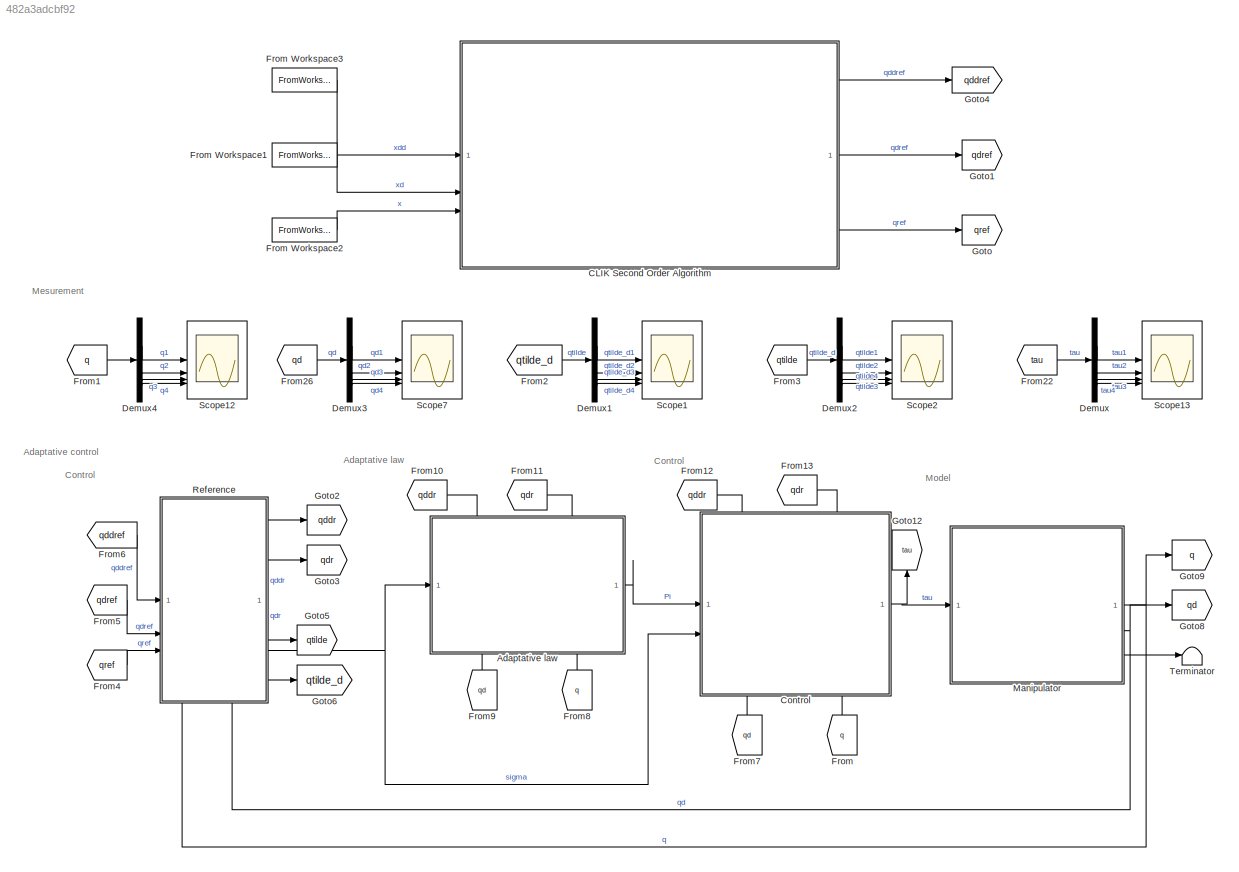
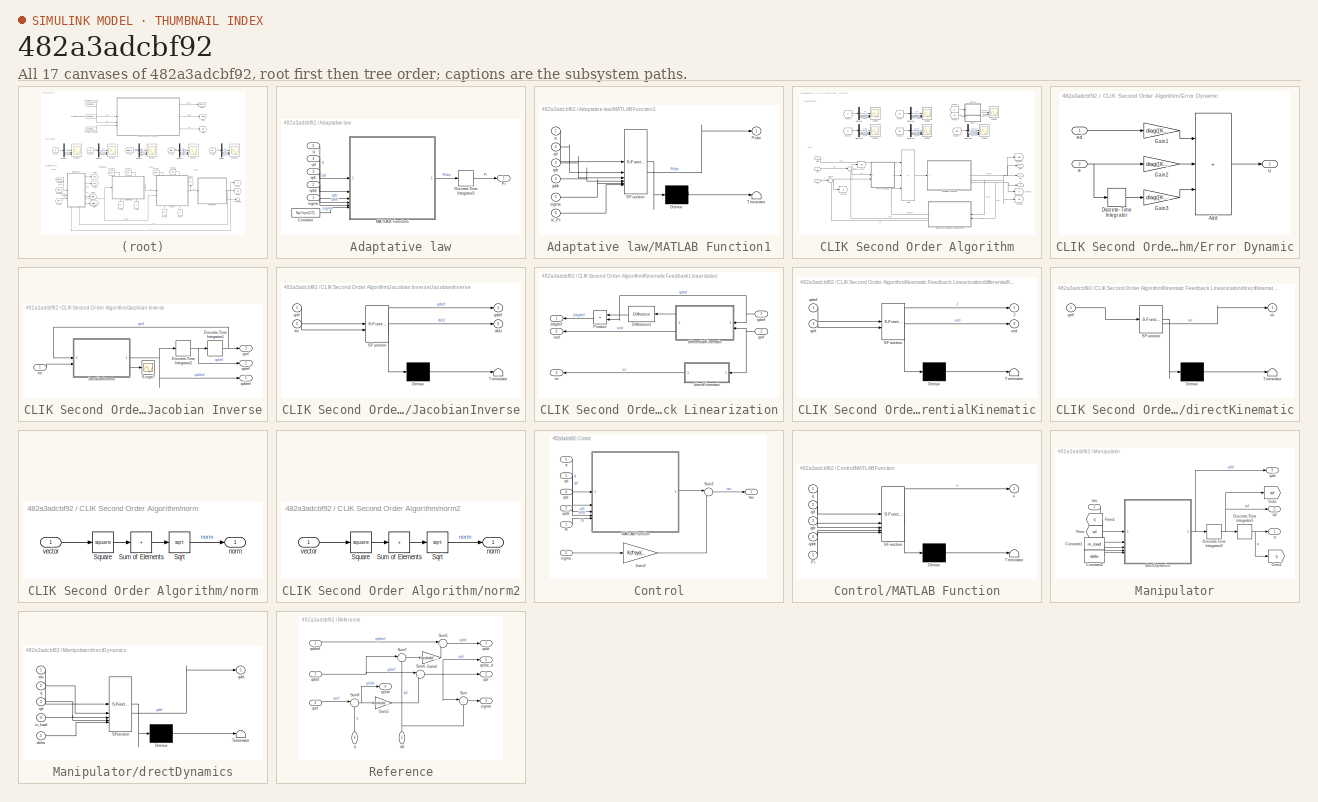
[diagram: thumbnail index - all 17 canvases of the model, root first then tree order]
MODEL slx_482a3adcbf92
KIND model
CONFIG AbsTol = auto
CONFIG EnableMultiTasking = off
CONFIG FixedStep = 10e-17
CONFIG MaxStep = auto
CONFIG MinStep = auto
CONFIG RelTol = 1e-3
CONFIG SampleTimeConstraint = Unconstrained
CONFIG SolverName = VariableStepAuto
CONFIG StartTime = 0.0
CONFIG StopTime = time(end)
BLOCK [SubSystem] Adaptative law
  PortSchema = {"entries":[{"content":{"sides":[{"content":{"connectorIds":["In1"]},"type":"ConnectorPlacement.EquallySpacedRectSide","uuid":"db15ee83-1f1b-455d-afda-e94c97dcc1f2"},{"content":{"connectorIds":["Out1"],"side":"RIGHT"},"type":"ConnectorPlacement.EquallySpacedRectSide","uuid":"41c3f407-56b1-4c5a-b932-c27e17c703ed"},{"content":{"connectorIds":["In2","In3"],"side":"TOP"},"type":"ConnectorPlacement.Equ...<+406ch>
BLOCK [Constant] Adaptative law/Constant
  Value = Kpi*eye(17);
BLOCK [DiscreteIntegrator] Adaptative law/Discrete-Time Integrator3
  ICPrevOutput = DiscIntNeverNeededParam
  ICPrevScaledInput = DiscIntNeverNeededParam
  InitialCondition = [1.2500, 20.0000, 5.0000, 1.2500, 10.0000, 4, 4.000, 4.0000, 1.0000, 0.0100, 0.0100, 0.0050, 0.0010, 0.0001, 0.0001, 0.0100, 0.0050]'
  InitialConditionSetting = Auto
  SampleTime = 0.001
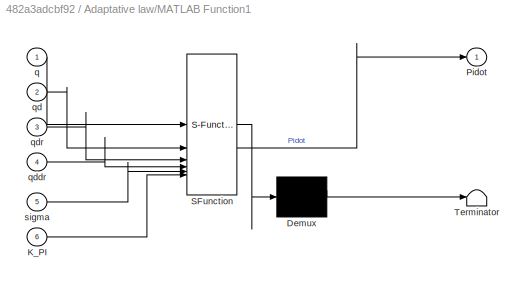
BLOCK [SubSystem] Adaptative law/MATLAB Function1
  ErrorFcn = Stateflow.Translate.translate
  PermitHierarchicalResolution = ExplicitOnly
  SFBlockType = MATLAB Function
  TreatAsAtomicUnit = on
BLOCK [Demux] Adaptative law/MATLAB Function1/ Demux 
  Outputs = 1
BLOCK [S-Function] Adaptative law/MATLAB Function1/ SFunction 
  EnableBusSupport = on
  FunctionName = sf_sfun
  PortCounts = [6 2]
  SFcnIsStateOwnerBlock = off
  SFunctionDeploymentMode = off
  Tag = Stateflow S-Function 3
BLOCK [Terminator] Adaptative law/MATLAB Function1/ Terminator 
BLOCK [Inport] Adaptative law/MATLAB Function1/K_PI
  Port = 6
BLOCK [Outport] Adaptative law/MATLAB Function1/Pidot
BLOCK [Inport] Adaptative law/MATLAB Function1/q
BLOCK [Inport] Adaptative law/MATLAB Function1/qd
  Port = 2
BLOCK [Inport] Adaptative law/MATLAB Function1/qddr
  Port = 4
BLOCK [Inport] Adaptative law/MATLAB Function1/qdr
  Port = 3
BLOCK [Inport] Adaptative law/MATLAB Function1/sigma
  Port = 5
BLOCK [Outport] Adaptative law/Pi
BLOCK [Inport] Adaptative law/q
  Port = 5
BLOCK [Inport] Adaptative law/qd
  Port = 4
BLOCK [Inport] Adaptative law/qddr
  Port = 2
BLOCK [Inport] Adaptative law/qdr
  Port = 3
BLOCK [Inport] Adaptative law/sigma
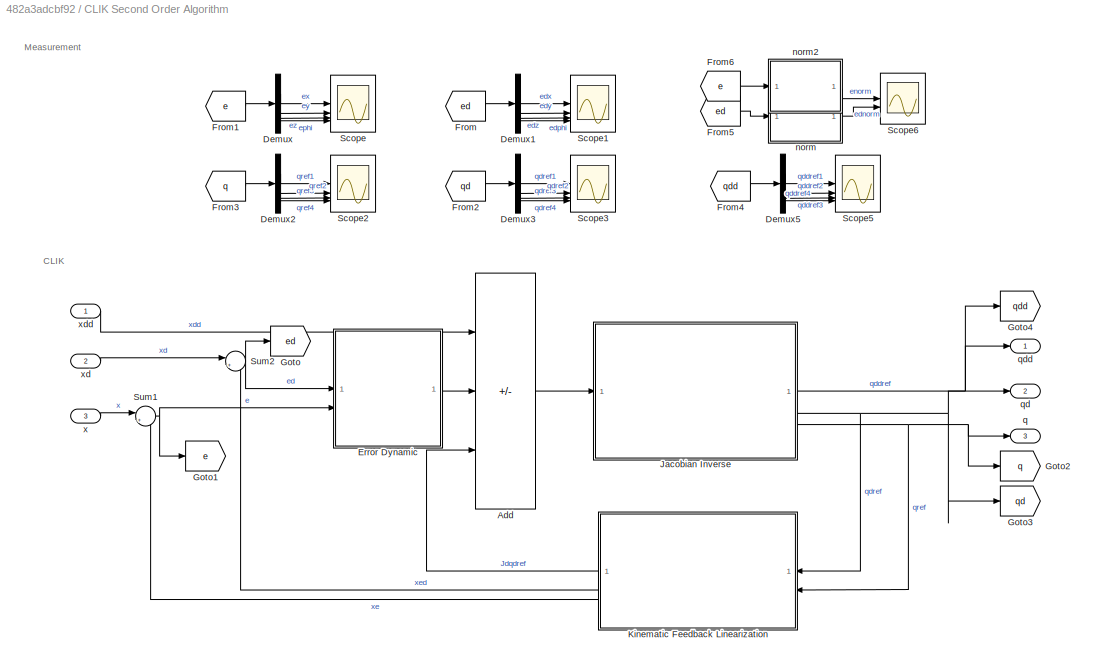
BLOCK [SubSystem] CLIK Second Order Algorithm
BLOCK [Sum] CLIK Second Order Algorithm/Add
  IconShape = rectangular
  Inputs = ++-
BLOCK [Demux] CLIK Second Order Algorithm/Demux
BLOCK [Demux] CLIK Second Order Algorithm/Demux1
BLOCK [Demux] CLIK Second Order Algorithm/Demux2
BLOCK [Demux] CLIK Second Order Algorithm/Demux3
BLOCK [Demux] CLIK Second Order Algorithm/Demux5
BLOCK [SubSystem] CLIK Second Order Algorithm/Error Dynamic
BLOCK [Sum] CLIK Second Order Algorithm/Error Dynamic/Add
  IconShape = rectangular
  Inputs = +++
BLOCK [DiscreteIntegrator] CLIK Second Order Algorithm/Error Dynamic/Discrete-Time Integrator
  ICPrevOutput = DiscIntNeverNeededParam
  ICPrevScaledInput = DiscIntNeverNeededParam
  InitialConditionSetting = Auto
  SampleTime = 0.001
BLOCK [Gain] CLIK Second Order Algorithm/Error Dynamic/Gain1
  Gain = diag([Kd1, Kd2, Kd3, Kd4])
  Multiplication = Matrix(K*u)
BLOCK [Gain] CLIK Second Order Algorithm/Error Dynamic/Gain2
  Gain = diag([Kp1, Kp2, Kp3, Kp4])
  Multiplication = Matrix(K*u)
BLOCK [Gain] CLIK Second Order Algorithm/Error Dynamic/Gain3
  Gain = diag([Ki, Ki, Ki, Ki])
  Multiplication = Matrix(K*u)
BLOCK [Inport] CLIK Second Order Algorithm/Error Dynamic/e
  Port = 2
BLOCK [Inport] CLIK Second Order Algorithm/Error Dynamic/ed
BLOCK [Outport] CLIK Second Order Algorithm/Error Dynamic/u
BLOCK [From] CLIK Second Order Algorithm/From
  GotoTag = ed
BLOCK [From] CLIK Second Order Algorithm/From1
  GotoTag = e
BLOCK [From] CLIK Second Order Algorithm/From2
  GotoTag = qd
BLOCK [From] CLIK Second Order Algorithm/From3
  GotoTag = q
BLOCK [From] CLIK Second Order Algorithm/From4
  GotoTag = qdd
BLOCK [From] CLIK Second Order Algorithm/From5
  GotoTag = ed
BLOCK [From] CLIK Second Order Algorithm/From6
  GotoTag = e
BLOCK [Goto] CLIK Second Order Algorithm/Goto
  GotoTag = ed
BLOCK [Goto] CLIK Second Order Algorithm/Goto1
  GotoTag = e
BLOCK [Goto] CLIK Second Order Algorithm/Goto2
  GotoTag = q
BLOCK [Goto] CLIK Second Order Algorithm/Goto3
  GotoTag = qd
BLOCK [Goto] CLIK Second Order Algorithm/Goto4
  GotoTag = qdd
BLOCK [SubSystem] CLIK Second Order Algorithm/Jacobian Inverse
BLOCK [DiscreteIntegrator] CLIK Second Order Algorithm/Jacobian Inverse/Discrete-Time Integrator1
  ICPrevOutput = DiscIntNeverNeededParam
  ICPrevScaledInput = DiscIntNeverNeededParam
  InitialCondition = [-1.5706; 0.7851; 0.5000; -0.7855]
  InitialConditionSetting = Auto
  SampleTime = 0.001
BLOCK [DiscreteIntegrator] CLIK Second Order Algorithm/Jacobian Inverse/Discrete-Time Integrator2
  ICPrevOutput = DiscIntNeverNeededParam
  ICPrevScaledInput = DiscIntNeverNeededParam
  InitialCondition = [0; 0; 0; 0] %[2.4152; -4.8305; -0.5000; -2.4153]
  InitialConditionSetting = Auto
  SampleTime = 0.001
BLOCK [SubSystem] CLIK Second Order Algorithm/Jacobian Inverse/JacobianInverse
  ErrorFcn = Stateflow.Translate.translate
  PermitHierarchicalResolution = ExplicitOnly
  SFBlockType = MATLAB Function
  TreatAsAtomicUnit = on
BLOCK [Demux] CLIK Second Order Algorithm/Jacobian Inverse/JacobianInverse/ Demux 
  Outputs = 1
BLOCK [S-Function] CLIK Second Order Algorithm/Jacobian Inverse/JacobianInverse/ SFunction 
  EnableBusSupport = on
  FunctionName = sf_sfun
  PortCounts = [2 3]
  SFcnIsStateOwnerBlock = off
  SFunctionDeploymentMode = off
  Tag = Stateflow S-Function 5
BLOCK [Terminator] CLIK Second Order Algorithm/Jacobian Inverse/JacobianInverse/ Terminator 
BLOCK [Outport] CLIK Second Order Algorithm/Jacobian Inverse/JacobianInverse/detJ
  Port = 2
BLOCK [Inport] CLIK Second Order Algorithm/Jacobian Inverse/JacobianInverse/ke
  Port = 2
BLOCK [Outport] CLIK Second Order Algorithm/Jacobian Inverse/JacobianInverse/qdref
BLOCK [Inport] CLIK Second Order Algorithm/Jacobian Inverse/JacobianInverse/qref
BLOCK [Scope] CLIK Second Order Algorithm/Jacobian Inverse/Scope7
  Floating = off
  NumInputPorts = 1
  ScopeSpecificationString = Simulink.scopes.TimeScopeBlockCfg('CurrentConfiguration', extmgr.ConfigurationSet(extmgr.Configuration('Core','General UI',true),extmgr.Configuration('Core','Source UI',true),extmgr.Configuration('Sources','WiredSimulink',true,'DataLoggingVariableName','ScopeData1'),extmgr.Configuration('Visuals','Time Domain',true,'SerializedDisplays',{struct('MinYLimReal','0.10918','MaxYLimReal','0.26565','YLabe...<+1412ch>
BLOCK [Inport] CLIK Second Order Algorithm/Jacobian Inverse/ke
BLOCK [Outport] CLIK Second Order Algorithm/Jacobian Inverse/qddref
BLOCK [Outport] CLIK Second Order Algorithm/Jacobian Inverse/qdref
  Port = 2
BLOCK [Outport] CLIK Second Order Algorithm/Jacobian Inverse/qref
  Port = 3
BLOCK [SubSystem] CLIK Second Order Algorithm/Kinematic Feedback Linearization
BLOCK [Reference] CLIK Second Order Algorithm/Kinematic Feedback Linearization/Difference1  REF=simulink/Discrete/Difference
  NameLocation = top
  SourceBlock = simulink/Discrete/Difference
  SourceType = Difference
BLOCK [Outport] CLIK Second Order Algorithm/Kinematic Feedback Linearization/Jdqdref
  NameLocation = top
BLOCK [Product] CLIK Second Order Algorithm/Kinematic Feedback Linearization/Product
  Multiplication = Matrix(*)
  NameLocation = top
BLOCK [SubSystem] CLIK Second Order Algorithm/Kinematic Feedback Linearization/differentialKinematic
  ErrorFcn = Stateflow.Translate.translate
  PermitHierarchicalResolution = ExplicitOnly
  SFBlockType = MATLAB Function
  TreatAsAtomicUnit = on
BLOCK [Demux] CLIK Second Order Algorithm/Kinematic Feedback Linearization/differentialKinematic/ Demux 
  Outputs = 1
BLOCK [S-Function] CLIK Second Order Algorithm/Kinematic Feedback Linearization/differentialKinematic/ SFunction 
  EnableBusSupport = on
  FunctionName = sf_sfun
  PortCounts = [2 3]
  SFcnIsStateOwnerBlock = off
  SFunctionDeploymentMode = off
  Tag = Stateflow S-Function 1
BLOCK [Terminator] CLIK Second Order Algorithm/Kinematic Feedback Linearization/differentialKinematic/ Terminator 
BLOCK [Outport] CLIK Second Order Algorithm/Kinematic Feedback Linearization/differentialKinematic/J
BLOCK [Inport] CLIK Second Order Algorithm/Kinematic Feedback Linearization/differentialKinematic/qdref
BLOCK [Inport] CLIK Second Order Algorithm/Kinematic Feedback Linearization/differentialKinematic/qref
  Port = 2
BLOCK [Outport] CLIK Second Order Algorithm/Kinematic Feedback Linearization/differentialKinematic/xed
  Port = 2
BLOCK [SubSystem] CLIK Second Order Algorithm/Kinematic Feedback Linearization/directKinematic
  ErrorFcn = Stateflow.Translate.translate
  NameLocation = top
  PermitHierarchicalResolution = ExplicitOnly
  SFBlockType = MATLAB Function
  TreatAsAtomicUnit = on
BLOCK [Demux] CLIK Second Order Algorithm/Kinematic Feedback Linearization/directKinematic/ Demux 
  Outputs = 1
BLOCK [S-Function] CLIK Second Order Algorithm/Kinematic Feedback Linearization/directKinematic/ SFunction 
  EnableBusSupport = on
  FunctionName = sf_sfun
  PortCounts = [1 2]
  SFcnIsStateOwnerBlock = off
  SFunctionDeploymentMode = off
  Tag = Stateflow S-Function 2
BLOCK [Terminator] CLIK Second Order Algorithm/Kinematic Feedback Linearization/directKinematic/ Terminator 
BLOCK [Inport] CLIK Second Order Algorithm/Kinematic Feedback Linearization/directKinematic/qref
BLOCK [Outport] CLIK Second Order Algorithm/Kinematic Feedback Linearization/directKinematic/xe
BLOCK [Inport] CLIK Second Order Algorithm/Kinematic Feedback Linearization/qdref
BLOCK [Inport] CLIK Second Order Algorithm/Kinematic Feedback Linearization/qref
  Port = 2
BLOCK [Outport] CLIK Second Order Algorithm/Kinematic Feedback Linearization/xe
  NameLocation = top
  Port = 3
BLOCK [Outport] CLIK Second Order Algorithm/Kinematic Feedback Linearization/xed
  NameLocation = top
  Port = 2
BLOCK [Scope] CLIK Second Order Algorithm/Scope
  Floating = off
  NumInputPorts = 4
  ScopeSpecificationString = Simulink.scopes.TimeScopeBlockCfg('CurrentConfiguration', extmgr.ConfigurationSet(extmgr.Configuration('Core','General UI',true),extmgr.Configuration('Core','Source UI',true),extmgr.Configuration('Sources','WiredSimulink',true,'DataLoggingVariableName','ScopeData2'),extmgr.Configuration('Visuals','Time Domain',true,'SerializedDisplays',{struct('MinYLimReal','-0.0009','MaxYLimReal','0.00038','YLabe...<+3433ch>
BLOCK [Scope] CLIK Second Order Algorithm/Scope1
  Floating = off
  NumInputPorts = 4
  ScopeSpecificationString = Simulink.scopes.TimeScopeBlockCfg('CurrentConfiguration', extmgr.ConfigurationSet(extmgr.Configuration('Core','General UI',true),extmgr.Configuration('Core','Source UI',true),extmgr.Configuration('Sources','WiredSimulink',true,'DataLoggingVariableName','ScopeData3'),extmgr.Configuration('Visuals','Time Domain',true,'SerializedDisplays',{struct('MinYLimReal','-0.52499','MaxYLimReal','2.31101','YLab...<+3408ch>
BLOCK [Scope] CLIK Second Order Algorithm/Scope2
  Floating = off
  NumInputPorts = 4
  ScopeSpecificationString = Simulink.scopes.TimeScopeBlockCfg('CurrentConfiguration', extmgr.ConfigurationSet(extmgr.Configuration('Core','General UI',true),extmgr.Configuration('Core','Source UI',true),extmgr.Configuration('Sources','WiredSimulink',true,'DataLoggingVariableName','ScopeData4'),extmgr.Configuration('Visuals','Time Domain',true,'SerializedDisplays',{struct('MinYLimReal','-2.48577','MaxYLimReal','6.38467','YLab...<+1388ch>
BLOCK [Scope] CLIK Second Order Algorithm/Scope3
  Floating = off
  NumInputPorts = 4
  ScopeSpecificationString = Simulink.scopes.TimeScopeBlockCfg('CurrentConfiguration', extmgr.ConfigurationSet(extmgr.Configuration('Core','General UI',true),extmgr.Configuration('Core','Source UI',true),extmgr.Configuration('Sources','WiredSimulink',true,'DataLoggingVariableName','ScopeData5'),extmgr.Configuration('Visuals','Time Domain',true,'SerializedDisplays',{struct('MinYLimReal','-9.10422','MaxYLimReal','5.32081','YLab...<+1392ch>
BLOCK [Scope] CLIK Second Order Algorithm/Scope5
  Floating = off
  NumInputPorts = 4
  ScopeSpecificationString = Simulink.scopes.TimeScopeBlockCfg('CurrentConfiguration', extmgr.ConfigurationSet(extmgr.Configuration('Core','General UI',true),extmgr.Configuration('Core','Source UI',true),extmgr.Configuration('Sources','WiredSimulink',true,'DataLoggingVariableName','ScopeData7'),extmgr.Configuration('Visuals','Time Domain',true,'SerializedDisplays',{struct('MinYLimReal','-1.93325','MaxYLimReal','2.61464','YLab...<+1431ch>
BLOCK [Scope] CLIK Second Order Algorithm/Scope6
  Floating = off
  NumInputPorts = 2
  ScopeSpecificationString = Simulink.scopes.TimeScopeBlockCfg('CurrentConfiguration', extmgr.ConfigurationSet(extmgr.Configuration('Core','General UI',true),extmgr.Configuration('Core','Source UI',true),extmgr.Configuration('Sources','WiredSimulink',true,'DataLoggingVariableName','ScopeData8'),extmgr.Configuration('Visuals','Time Domain',true,'SerializedDisplays',{struct('MinYLimReal','-0.16468','MaxYLimReal','1.48717','YLab...<+2083ch>
BLOCK [Sum] CLIK Second Order Algorithm/Sum1
  Inputs = |+-
BLOCK [Sum] CLIK Second Order Algorithm/Sum2
  Inputs = |+-
BLOCK [SubSystem] CLIK Second Order Algorithm/norm
BLOCK [Sqrt] CLIK Second Order Algorithm/norm/Sqrt
BLOCK [Math] CLIK Second Order Algorithm/norm/Square
  Operator = square
BLOCK [Sum] CLIK Second Order Algorithm/norm/Sum of Elements
  IconShape = rectangular
  Inputs = +
BLOCK [Outport] CLIK Second Order Algorithm/norm/norm
BLOCK [Inport] CLIK Second Order Algorithm/norm/vector
BLOCK [SubSystem] CLIK Second Order Algorithm/norm2
BLOCK [Sqrt] CLIK Second Order Algorithm/norm2/Sqrt
BLOCK [Math] CLIK Second Order Algorithm/norm2/Square
  Operator = square
BLOCK [Sum] CLIK Second Order Algorithm/norm2/Sum of Elements
  IconShape = rectangular
  Inputs = +
BLOCK [Outport] CLIK Second Order Algorithm/norm2/norm
BLOCK [Inport] CLIK Second Order Algorithm/norm2/vector
BLOCK [Outport] CLIK Second Order Algorithm/q
  Port = 3
BLOCK [Outport] CLIK Second Order Algorithm/qd
  Port = 2
BLOCK [Outport] CLIK Second Order Algorithm/qdd
BLOCK [Inport] CLIK Second Order Algorithm/x
  Port = 3
BLOCK [Inport] CLIK Second Order Algorithm/xd
  Port = 2
BLOCK [Inport] CLIK Second Order Algorithm/xdd
BLOCK [SubSystem] Control
  PortSchema = {"entries":[{"content":{"sides":[{"content":{"connectorIds":["In1","In2"]},"type":"ConnectorPlacement.EquallySpacedRectSide","uuid":"acb7cdf1-642f-4969-8ed4-672da436f71d"},{"content":{"connectorIds":["Out1"],"side":"RIGHT"},"type":"ConnectorPlacement.EquallySpacedRectSide","uuid":"4cc46839-d0fa-4cc4-8f70-8a289b8a20bb"},{"content":{"connectorIds":["In3","In4"],"side":"TOP"},"type":"ConnectorPlaceme...<+412ch>
BLOCK [Gain] Control/Gain3
  Gain = Kd*eye(4)
  Multiplication = Matrix(K*u)
BLOCK [SubSystem] Control/MATLAB Function
  ErrorFcn = Stateflow.Translate.translate
  PermitHierarchicalResolution = ExplicitOnly
  SFBlockType = MATLAB Function
  TreatAsAtomicUnit = on
BLOCK [Demux] Control/MATLAB Function/ Demux 
  Outputs = 1
BLOCK [S-Function] Control/MATLAB Function/ SFunction 
  EnableBusSupport = on
  FunctionName = sf_sfun
  PortCounts = [5 2]
  SFcnIsStateOwnerBlock = off
  SFunctionDeploymentMode = off
  Tag = Stateflow S-Function 7
BLOCK [Terminator] Control/MATLAB Function/ Terminator 
BLOCK [Inport] Control/MATLAB Function/Pi
  Port = 5
BLOCK [Inport] Control/MATLAB Function/q
BLOCK [Inport] Control/MATLAB Function/qd
  Port = 2
BLOCK [Inport] Control/MATLAB Function/qddr
  Port = 4
BLOCK [Inport] Control/MATLAB Function/qdr
  Port = 3
BLOCK [Outport] Control/MATLAB Function/u
BLOCK [Inport] Control/Pi
BLOCK [Sum] Control/Sum3
  Inputs = |++
BLOCK [Inport] Control/q
  Port = 6
BLOCK [Inport] Control/qd
  Port = 5
BLOCK [Inport] Control/qddr
  Port = 3
BLOCK [Inport] Control/qdr
  Port = 4
BLOCK [Inport] Control/sigma
  Port = 2
BLOCK [Outport] Control/tau
BLOCK [Demux] Demux
BLOCK [Demux] Demux1
BLOCK [Demux] Demux2
BLOCK [Demux] Demux3
BLOCK [Demux] Demux4
BLOCK [From] From
  GotoTag = q
  NameLocation = right
BLOCK [FromWorkspace] From Workspace1
  VariableName = timesample_dot
BLOCK [FromWorkspace] From Workspace2
  VariableName = timesample
BLOCK [FromWorkspace] From Workspace3
  VariableName = timesample_ddot
BLOCK [From] From1
  GotoTag = q
BLOCK [From] From10
  GotoTag = qddr
BLOCK [From] From11
  GotoTag = qdr
BLOCK [From] From12
  GotoTag = qddr
BLOCK [From] From13
  GotoTag = qdr
BLOCK [From] From2
  GotoTag = qtilde_d
BLOCK [From] From22
  GotoTag = tau
BLOCK [From] From26
  GotoTag = qd
BLOCK [From] From3
  GotoTag = qtilde
BLOCK [From] From4
  GotoTag = qref
BLOCK [From] From5
  GotoTag = qdref
BLOCK [From] From6
  GotoTag = qddref
BLOCK [From] From7
  GotoTag = qd
  NameLocation = right
BLOCK [From] From8
  GotoTag = q
  NameLocation = right
BLOCK [From] From9
  GotoTag = qd
  NameLocation = right
BLOCK [Goto] Goto
  GotoTag = qref
BLOCK [Goto] Goto1
  GotoTag = qdref
BLOCK [Goto] Goto12
  GotoTag = tau
  NameLocation = right
BLOCK [Goto] Goto2
  GotoTag = qddr
BLOCK [Goto] Goto3
  GotoTag = qdr
BLOCK [Goto] Goto4
  GotoTag = qddref
BLOCK [Goto] Goto5
  GotoTag = qtilde
BLOCK [Goto] Goto6
  GotoTag = qtilde_d
BLOCK [Goto] Goto8
  GotoTag = qd
BLOCK [Goto] Goto9
  GotoTag = q
BLOCK [SubSystem] Manipulator
BLOCK [Constant] Manipulator/Constant1
  Value = m_load
BLOCK [Constant] Manipulator/Constant2
  Value = delta
BLOCK [DiscreteIntegrator] Manipulator/Discrete-Time Integrator3
  ICPrevOutput = DiscIntNeverNeededParam
  ICPrevScaledInput = DiscIntNeverNeededParam
  InitialCondition = [0; 0; 0; 0]
  InitialConditionSetting = Auto
  SampleTime = 0.001
BLOCK [DiscreteIntegrator] Manipulator/Discrete-Time Integrator5
  ICPrevOutput = DiscIntNeverNeededParam
  ICPrevScaledInput = DiscIntNeverNeededParam
  InitialCondition = [-1.5706; 0.7851; 0.5000; -0.7855]
  InitialConditionSetting = Auto
  SampleTime = 0.001
BLOCK [From] Manipulator/From
  GotoTag = qd
BLOCK [From] Manipulator/From1
  GotoTag = q
BLOCK [Goto] Manipulator/Goto
  GotoTag = qd
BLOCK [Goto] Manipulator/Goto1
  GotoTag = q
BLOCK [SubSystem] Manipulator/drectDynamics
  ErrorFcn = Stateflow.Translate.translate
  PermitHierarchicalResolution = ExplicitOnly
  SFBlockType = MATLAB Function
  TreatAsAtomicUnit = on
BLOCK [Demux] Manipulator/drectDynamics/ Demux 
  Outputs = 1
BLOCK [S-Function] Manipulator/drectDynamics/ SFunction 
  EnableBusSupport = on
  FunctionName = sf_sfun
  PortCounts = [5 2]
  SFcnIsStateOwnerBlock = off
  SFunctionDeploymentMode = off
  Tag = Stateflow S-Function 9
BLOCK [Terminator] Manipulator/drectDynamics/ Terminator 
BLOCK [Inport] Manipulator/drectDynamics/delta
  Port = 5
BLOCK [Inport] Manipulator/drectDynamics/m_load
  Port = 4
BLOCK [Inport] Manipulator/drectDynamics/q
  Port = 2
BLOCK [Inport] Manipulator/drectDynamics/qd
  Port = 3
BLOCK [Outport] Manipulator/drectDynamics/qdd
BLOCK [Inport] Manipulator/drectDynamics/tau
BLOCK [Outport] Manipulator/q
BLOCK [Outport] Manipulator/qd
  Port = 2
BLOCK [Outport] Manipulator/qdd
  Port = 3
BLOCK [Inport] Manipulator/tau
BLOCK [SubSystem] Reference
  PortSchema = {"entries":[{"content":{"sides":[{"content":{"connectorIds":["In1","In2","In3"]},"type":"ConnectorPlacement.EquallySpacedRectSide","uuid":"cb63d9dc-23a2-4ec7-ac11-e398610ef5c2"},{"content":{"connectorIds":["Out1","Out2","Out3","Out4","Out5"],"side":"RIGHT"},"type":"ConnectorPlacement.EquallySpacedRectSide","uuid":"29d086a8-0031-4faa-9200-b9934d21fc49"},{"content":{"side":"TOP"},"type":"ConnectorPl...<+417ch>
BLOCK [Gain] Reference/Gain4
  Gain = lambda*eye(4)
  Multiplication = Matrix(K*u)
BLOCK [Gain] Reference/Gain5
  Gain = lambda*eye(4)
  Multiplication = Matrix(K*u)
BLOCK [Sum] Reference/Sum
  Inputs = |+-
BLOCK [Sum] Reference/Sum5
  Inputs = |++
BLOCK [Sum] Reference/Sum6
  Inputs = |++
BLOCK [Sum] Reference/Sum7
  Inputs = |+-
BLOCK [Sum] Reference/Sum8
  Inputs = |+-
BLOCK [Inport] Reference/q
  NameLocation = right
  Port = 4
BLOCK [Inport] Reference/qd
  NameLocation = right
  Port = 5
BLOCK [Outport] Reference/qddr
BLOCK [Inport] Reference/qddref
BLOCK [Outport] Reference/qdr
  Port = 2
BLOCK [Inport] Reference/qdref
  Port = 2
BLOCK [Inport] Reference/qref
  Port = 3
BLOCK [Outport] Reference/qtilde
  Port = 4
BLOCK [Outport] Reference/qtilde_d
  Port = 5
BLOCK [Outport] Reference/sigma
  Port = 3
BLOCK [Scope] Scope1
  Floating = off
  NumInputPorts = 4
  ScopeSpecificationString = Simulink.scopes.TimeScopeBlockCfg('CurrentConfiguration', extmgr.ConfigurationSet(extmgr.Configuration('Core','General UI',true),extmgr.Configuration('Core','Source UI',true),extmgr.Configuration('Sources','WiredSimulink',true,'DataLoggingVariableName','ScopeData1'),extmgr.Configuration('Visuals','Time Domain',true,'SerializedDisplays',{struct('MinYLimReal','-3.24806','MaxYLimReal','1.35421','YLab...<+3428ch>
BLOCK [Scope] Scope12
  Floating = off
  NumInputPorts = 4
  ScopeSpecificationString = Simulink.scopes.TimeScopeBlockCfg('CurrentConfiguration', extmgr.ConfigurationSet(extmgr.Configuration('Core','General UI',true),extmgr.Configuration('Core','Source UI',true),extmgr.Configuration('Sources','WiredSimulink',true,'DataLoggingVariableName','ScopeData4'),extmgr.Configuration('Visuals','Time Domain',true,'SerializedDisplays',{struct('MinYLimReal','-2.35686','MaxYLimReal','5.49821','YLab...<+3398ch>
BLOCK [Scope] Scope13
  Floating = off
  NumInputPorts = 4
  ScopeSpecificationString = Simulink.scopes.TimeScopeBlockCfg('CurrentConfiguration', extmgr.ConfigurationSet(extmgr.Configuration('Core','General UI',true),extmgr.Configuration('Core','Source UI',true),extmgr.Configuration('Sources','WiredSimulink',true,'DataLoggingVariableName','ScopeData5'),extmgr.Configuration('Visuals','Time Domain',true,'SerializedDisplays',{struct('MinYLimReal','-23.87631','MaxYLimReal','26.9603','YLa...<+3416ch>
BLOCK [Scope] Scope2
  Floating = off
  NumInputPorts = 4
  ScopeSpecificationString = Simulink.scopes.TimeScopeBlockCfg('CurrentConfiguration', extmgr.ConfigurationSet(extmgr.Configuration('Core','General UI',true),extmgr.Configuration('Core','Source UI',true),extmgr.Configuration('Sources','WiredSimulink',true,'DataLoggingVariableName','ScopeData2'),extmgr.Configuration('Visuals','Time Domain',true,'SerializedDisplays',{struct('MinYLimReal','-0.00072','MaxYLimReal','0.00086','YLab...<+3422ch>
BLOCK [Scope] Scope7
  Floating = off
  NumInputPorts = 4
  ScopeSpecificationString = Simulink.scopes.TimeScopeBlockCfg('CurrentConfiguration', extmgr.ConfigurationSet(extmgr.Configuration('Core','General UI',true),extmgr.Configuration('Core','Source UI',true),extmgr.Configuration('Sources','WiredSimulink',true,'DataLoggingVariableName','ScopeData3'),extmgr.Configuration('Visuals','Time Domain',true,'SerializedDisplays',{struct('MinYLimReal','-2.43014','MaxYLimReal','2.24128','YLab...<+3405ch>
BLOCK [Terminator] Terminator
ANNOTATION (root): Adaptative control
ANNOTATION (root): Adaptative law
ANNOTATION (root): Control
ANNOTATION (root): Mesurement
ANNOTATION (root): Model
ANNOTATION CLIK Second Order Algorithm: CLIK
ANNOTATION CLIK Second Order Algorithm: Measurement
LINE Adaptative law/Constant:1 -> Adaptative law/MATLAB Function1:6
LINE Adaptative law/Discrete-Time Integrator3:1 -> Adaptative law/Pi:1
LINE Adaptative law/MATLAB Function1:1 -> Adaptative law/Discrete-Time Integrator3:1
LINE Adaptative law/q:1 -> Adaptative law/MATLAB Function1:1
LINE Adaptative law/qd:1 -> Adaptative law/MATLAB Function1:2
LINE Adaptative law/qddr:1 -> Adaptative law/MATLAB Function1:4
LINE Adaptative law/qdr:1 -> Adaptative law/MATLAB Function1:3
LINE Adaptative law/sigma:1 -> Adaptative law/MATLAB Function1:5
LINE Adaptative law:1 -> Control:1
LINE CLIK Second Order Algorithm/Add:1 -> CLIK Second Order Algorithm/Jacobian Inverse:1
LINE CLIK Second Order Algorithm/Demux1:1 -> CLIK Second Order Algorithm/Scope1:1
LINE CLIK Second Order Algorithm/Demux1:2 -> CLIK Second Order Algorithm/Scope1:2
LINE CLIK Second Order Algorithm/Demux1:3 -> CLIK Second Order Algorithm/Scope1:3
LINE CLIK Second Order Algorithm/Demux1:4 -> CLIK Second Order Algorithm/Scope1:4
LINE CLIK Second Order Algorithm/Demux2:1 -> CLIK Second Order Algorithm/Scope2:1
LINE CLIK Second Order Algorithm/Demux2:2 -> CLIK Second Order Algorithm/Scope2:2
LINE CLIK Second Order Algorithm/Demux2:3 -> CLIK Second Order Algorithm/Scope2:3
LINE CLIK Second Order Algorithm/Demux2:4 -> CLIK Second Order Algorithm/Scope2:4
LINE CLIK Second Order Algorithm/Demux3:1 -> CLIK Second Order Algorithm/Scope3:1
LINE CLIK Second Order Algorithm/Demux3:2 -> CLIK Second Order Algorithm/Scope3:2
LINE CLIK Second Order Algorithm/Demux3:3 -> CLIK Second Order Algorithm/Scope3:3
LINE CLIK Second Order Algorithm/Demux3:4 -> CLIK Second Order Algorithm/Scope3:4
LINE CLIK Second Order Algorithm/Demux5:1 -> CLIK Second Order Algorithm/Scope5:1
LINE CLIK Second Order Algorithm/Demux5:2 -> CLIK Second Order Algorithm/Scope5:2
LINE CLIK Second Order Algorithm/Demux5:3 -> CLIK Second Order Algorithm/Scope5:3
LINE CLIK Second Order Algorithm/Demux5:4 -> CLIK Second Order Algorithm/Scope5:4
LINE CLIK Second Order Algorithm/Demux:1 -> CLIK Second Order Algorithm/Scope:1
LINE CLIK Second Order Algorithm/Demux:2 -> CLIK Second Order Algorithm/Scope:2
LINE CLIK Second Order Algorithm/Demux:3 -> CLIK Second Order Algorithm/Scope:3
LINE CLIK Second Order Algorithm/Demux:4 -> CLIK Second Order Algorithm/Scope:4
LINE CLIK Second Order Algorithm/Error Dynamic/Add:1 -> CLIK Second Order Algorithm/Error Dynamic/u:1
LINE CLIK Second Order Algorithm/Error Dynamic/Discrete-Time Integrator:1 -> CLIK Second Order Algorithm/Error Dynamic/Gain3:1
LINE CLIK Second Order Algorithm/Error Dynamic/Gain1:1 -> CLIK Second Order Algorithm/Error Dynamic/Add:1
LINE CLIK Second Order Algorithm/Error Dynamic/Gain2:1 -> CLIK Second Order Algorithm/Error Dynamic/Add:2
LINE CLIK Second Order Algorithm/Error Dynamic/Gain3:1 -> CLIK Second Order Algorithm/Error Dynamic/Add:3
NET CLIK Second Order Algorithm/Error Dynamic/e:1 -> CLIK Second Order Algorithm/Error Dynamic/Discrete-Time Integrator:1, CLIK Second Order Algorithm/Error Dynamic/Gain2:1
LINE CLIK Second Order Algorithm/Error Dynamic/ed:1 -> CLIK Second Order Algorithm/Error Dynamic/Gain1:1
LINE CLIK Second Order Algorithm/Error Dynamic:1 -> CLIK Second Order Algorithm/Add:2
LINE CLIK Second Order Algorithm/From1:1 -> CLIK Second Order Algorithm/Demux:1
LINE CLIK Second Order Algorithm/From2:1 -> CLIK Second Order Algorithm/Demux3:1
LINE CLIK Second Order Algorithm/From3:1 -> CLIK Second Order Algorithm/Demux2:1
LINE CLIK Second Order Algorithm/From4:1 -> CLIK Second Order Algorithm/Demux5:1
LINE CLIK Second Order Algorithm/From5:1 -> CLIK Second Order Algorithm/norm:1
LINE CLIK Second Order Algorithm/From6:1 -> CLIK Second Order Algorithm/norm2:1
LINE CLIK Second Order Algorithm/From:1 -> CLIK Second Order Algorithm/Demux1:1
NET CLIK Second Order Algorithm/Jacobian Inverse/Discrete-Time Integrator1:1 -> CLIK Second Order Algorithm/Jacobian Inverse/JacobianInverse:1, CLIK Second Order Algorithm/Jacobian Inverse/qref:1
NET CLIK Second Order Algorithm/Jacobian Inverse/Discrete-Time Integrator2:1 -> CLIK Second Order Algorithm/Jacobian Inverse/Discrete-Time Integrator1:1, CLIK Second Order Algorithm/Jacobian Inverse/qdref:1
NET CLIK Second Order Algorithm/Jacobian Inverse/JacobianInverse:1 -> CLIK Second Order Algorithm/Jacobian Inverse/Discrete-Time Integrator2:1, CLIK Second Order Algorithm/Jacobian Inverse/qddref:1
LINE CLIK Second Order Algorithm/Jacobian Inverse/JacobianInverse:2 -> CLIK Second Order Algorithm/Jacobian Inverse/Scope7:1
LINE CLIK Second Order Algorithm/Jacobian Inverse/ke:1 -> CLIK Second Order Algorithm/Jacobian Inverse/JacobianInverse:2
NET CLIK Second Order Algorithm/Jacobian Inverse:1 -> CLIK Second Order Algorithm/Goto4:1, CLIK Second Order Algorithm/qdd:1
NET CLIK Second Order Algorithm/Jacobian Inverse:2 -> CLIK Second Order Algorithm/Goto3:1, CLIK Second Order Algorithm/Kinematic Feedback Linearization:1, CLIK Second Order Algorithm/qd:1
NET CLIK Second Order Algorithm/Jacobian Inverse:3 -> CLIK Second Order Algorithm/Goto2:1, CLIK Second Order Algorithm/Kinematic Feedback Linearization:2, CLIK Second Order Algorithm/q:1
LINE CLIK Second Order Algorithm/Kinematic Feedback Linearization/Difference1:1 -> CLIK Second Order Algorithm/Kinematic Feedback Linearization/Product:1
LINE CLIK Second Order Algorithm/Kinematic Feedback Linearization/Product:1 -> CLIK Second Order Algorithm/Kinematic Feedback Linearization/Jdqdref:1
LINE CLIK Second Order Algorithm/Kinematic Feedback Linearization/differentialKinematic:1 -> CLIK Second Order Algorithm/Kinematic Feedback Linearization/Difference1:1
LINE CLIK Second Order Algorithm/Kinematic Feedback Linearization/differentialKinematic:2 -> CLIK Second Order Algorithm/Kinematic Feedback Linearization/xed:1
LINE CLIK Second Order Algorithm/Kinematic Feedback Linearization/directKinematic:1 -> CLIK Second Order Algorithm/Kinematic Feedback Linearization/xe:1
NET CLIK Second Order Algorithm/Kinematic Feedback Linearization/qdref:1 -> CLIK Second Order Algorithm/Kinematic Feedback Linearization/Product:2, CLIK Second Order Algorithm/Kinematic Feedback Linearization/differentialKinematic:1
NET CLIK Second Order Algorithm/Kinematic Feedback Linearization/qref:1 -> CLIK Second Order Algorithm/Kinematic Feedback Linearization/differentialKinematic:2, CLIK Second Order Algorithm/Kinematic Feedback Linearization/directKinematic:1
LINE CLIK Second Order Algorithm/Kinematic Feedback Linearization:1 -> CLIK Second Order Algorithm/Add:3
LINE CLIK Second Order Algorithm/Kinematic Feedback Linearization:2 -> CLIK Second Order Algorithm/Sum2:2
LINE CLIK Second Order Algorithm/Kinematic Feedback Linearization:3 -> CLIK Second Order Algorithm/Sum1:2
NET CLIK Second Order Algorithm/Sum1:1 -> CLIK Second Order Algorithm/Error Dynamic:2, CLIK Second Order Algorithm/Goto1:1
NET CLIK Second Order Algorithm/Sum2:1 -> CLIK Second Order Algorithm/Error Dynamic:1, CLIK Second Order Algorithm/Goto:1
LINE CLIK Second Order Algorithm/norm/Sqrt:1 -> CLIK Second Order Algorithm/norm/norm:1
LINE CLIK Second Order Algorithm/norm/Square:1 -> CLIK Second Order Algorithm/norm/Sum of Elements:1
LINE CLIK Second Order Algorithm/norm/Sum of Elements:1 -> CLIK Second Order Algorithm/norm/Sqrt:1
LINE CLIK Second Order Algorithm/norm/vector:1 -> CLIK Second Order Algorithm/norm/Square:1
LINE CLIK Second Order Algorithm/norm2/Sqrt:1 -> CLIK Second Order Algorithm/norm2/norm:1
LINE CLIK Second Order Algorithm/norm2/Square:1 -> CLIK Second Order Algorithm/norm2/Sum of Elements:1
LINE CLIK Second Order Algorithm/norm2/Sum of Elements:1 -> CLIK Second Order Algorithm/norm2/Sqrt:1
LINE CLIK Second Order Algorithm/norm2/vector:1 -> CLIK Second Order Algorithm/norm2/Square:1
LINE CLIK Second Order Algorithm/norm2:1 -> CLIK Second Order Algorithm/Scope6:1
LINE CLIK Second Order Algorithm/norm:1 -> CLIK Second Order Algorithm/Scope6:2
LINE CLIK Second Order Algorithm/x:1 -> CLIK Second Order Algorithm/Sum1:1
LINE CLIK Second Order Algorithm/xd:1 -> CLIK Second Order Algorithm/Sum2:1
LINE CLIK Second Order Algorithm/xdd:1 -> CLIK Second Order Algorithm/Add:1
LINE CLIK Second Order Algorithm:1 -> Goto4:1
LINE CLIK Second Order Algorithm:2 -> Goto1:1
LINE CLIK Second Order Algorithm:3 -> Goto:1
LINE Control/Gain3:1 -> Control/Sum3:2
LINE Control/MATLAB Function:1 -> Control/Sum3:1
LINE Control/Pi:1 -> Control/MATLAB Function:5
LINE Control/Sum3:1 -> Control/tau:1
LINE Control/q:1 -> Control/MATLAB Function:1
LINE Control/qd:1 -> Control/MATLAB Function:2
LINE Control/qddr:1 -> Control/MATLAB Function:4
LINE Control/qdr:1 -> Control/MATLAB Function:3
LINE Control/sigma:1 -> Control/Gain3:1
NET Control:1 -> Goto12:1, Manipulator:1
LINE Demux1:1 -> Scope1:1
LINE Demux1:2 -> Scope1:2
LINE Demux1:3 -> Scope1:3
LINE Demux1:4 -> Scope1:4
LINE Demux2:1 -> Scope2:1
LINE Demux2:2 -> Scope2:2
LINE Demux2:3 -> Scope2:3
LINE Demux2:4 -> Scope2:4
LINE Demux3:1 -> Scope7:1
LINE Demux3:2 -> Scope7:2
LINE Demux3:3 -> Scope7:3
LINE Demux3:4 -> Scope7:4
LINE Demux4:1 -> Scope12:1
LINE Demux4:2 -> Scope12:2
LINE Demux4:3 -> Scope12:3
LINE Demux4:4 -> Scope12:4
LINE Demux:1 -> Scope13:1
LINE Demux:2 -> Scope13:2
LINE Demux:3 -> Scope13:3
LINE Demux:4 -> Scope13:4
LINE From Workspace1:1 -> CLIK Second Order Algorithm:2
LINE From Workspace2:1 -> CLIK Second Order Algorithm:3
LINE From Workspace3:1 -> CLIK Second Order Algorithm:1
LINE From10:1 -> Adaptative law:2
LINE From11:1 -> Adaptative law:3
LINE From12:1 -> Control:3
LINE From13:1 -> Control:4
LINE From1:1 -> Demux4:1
LINE From22:1 -> Demux:1
LINE From26:1 -> Demux3:1
LINE From2:1 -> Demux1:1
LINE From3:1 -> Demux2:1
LINE From4:1 -> Reference:3
LINE From5:1 -> Reference:2
LINE From6:1 -> Reference:1
LINE From7:1 -> Control:5
LINE From8:1 -> Adaptative law:5
LINE From9:1 -> Adaptative law:4
LINE From:1 -> Control:6
LINE Manipulator/Constant1:1 -> Manipulator/drectDynamics:4
LINE Manipulator/Constant2:1 -> Manipulator/drectDynamics:5
NET Manipulator/Discrete-Time Integrator3:1 -> Manipulator/Discrete-Time Integrator5:1, Manipulator/Goto:1, Manipulator/qd:1
NET Manipulator/Discrete-Time Integrator5:1 -> Manipulator/Goto1:1, Manipulator/q:1
LINE Manipulator/From1:1 -> Manipulator/drectDynamics:2
LINE Manipulator/From:1 -> Manipulator/drectDynamics:3
NET Manipulator/drectDynamics:1 -> Manipulator/Discrete-Time Integrator3:1, Manipulator/qdd:1
LINE Manipulator/tau:1 -> Manipulator/drectDynamics:1
NET Manipulator:1 -> Goto9:1, Reference:4
NET Manipulator:2 -> Goto8:1, Reference:5
LINE Manipulator:3 -> Terminator:1
LINE Reference/Gain4:1 -> Reference/Sum5:2
LINE Reference/Gain5:1 -> Reference/Sum6:2
LINE Reference/Sum5:1 -> Reference/qddr:1
NET Reference/Sum6:1 -> Reference/Sum:1, Reference/qdr:1, Reference/qtilde_d:1
LINE Reference/Sum7:1 -> Reference/Gain4:1
NET Reference/Sum8:1 -> Reference/Gain5:1, Reference/qtilde:1
LINE Reference/Sum:1 -> Reference/sigma:1
LINE Reference/q:1 -> Reference/Sum8:2
NET Reference/qd:1 -> Reference/Sum7:2, Reference/Sum:2
LINE Reference/qddref:1 -> Reference/Sum5:1
NET Reference/qdref:1 -> Reference/Sum6:1, Reference/Sum7:1
LINE Reference/qref:1 -> Reference/Sum8:1
LINE Reference:1 -> Goto2:1
LINE Reference:2 -> Goto3:1
NET Reference:3 -> Adaptative law:1, Control:2
LINE Reference:4 -> Goto5:1
LINE Reference:5 -> Goto6:1
note: NET lines group one-source signal fan-out (src -> all destinations, sorted); 1:1 wires keep LINE
CHART CLIK Second Order Algorithm/Kinematic Feedback Linearization/differentialKinematic states=1 transitions=1
  STATE_LABEL 'eML_blk_kernel()'
  STATE_LABEL 'SCRIPT:\nfunction [J, xed] = Jacobian(qdref, qref)\n\n    % Init the SCARA manipulator parameters\n    a1 = .5; a2 = .5;\n    theta1 = qref(1,:); theta2 = qref(2,:);\n    \n    %% Geometric Jacobian Matrix\n    Ja = [-a1*sin(theta1) - a2*sin(theta1 + theta2), - a2*sin(theta1 + theta2), 0, 0;\n        a1*cos(theta1) + a2*cos(theta1 + theta2), a2*cos(theta1 + theta2), 0, 0;\n        0, 0, -1, 0;\n        1, 1,...<+240ch>'
CHART CLIK Second Order Algorithm/Kinematic Feedback Linearization/directKinematic states=1 transitions=1
  STATE_LABEL 'eML_blk_kernel()'
  STATE_LABEL 'SCRIPT:\nfunction xe = directKinematic(qref)\n    \n    %% Init the SCARA manipulator parameters and Joint variables\n    a1 = .5; a2 = .5; d0 = 1;\n    theta1 = qref(1,:); theta2 = qref(2,:); d3 = qref(3,:); theta4 = qref(4,:);\n\n    %% Forward Kinematics link for the SCARA\n    k = [a1*cos(theta1) + a2*cos(theta1 + theta2);\n        a1*sin(theta1) + a2*sin(theta1 + theta2);\n        d0 - d3;\n        thet...<+41ch>'
CHART Adaptative law/MATLAB Function1 states=1 transitions=1
  STATE_LABEL 'eML_blk_kernel()'
  STATE_LABEL 'SCRIPT:\nfunction Pidot = regressorTranspose(q,qd,qdr,qddr,sigma,K_PI)\n\n%% Parameter for linear dynamic model\nq2 = q(2,:);\nqd1 = qd(1,:);\nqd2 = qd(2,:);\nqdr1 = qdr(1,:);\nqdr2 = qdr(2,:);\nqdr3 = qdr(3,:);\nqdr4 = qdr(4,:);\nqddr1 = qddr(1,:);\nqddr2 = qddr(2,:);\nqddr3 = qddr(3,:); \nqddr4 = qddr(4,:);\n\na1 = 0.5; a2 = 0.5;\nl2 = 0.25;\nkr1 = 1; kr2 = 1; kr3 = 50; kr4 = 20;\n\n%% Linear matrix\nY = [qddr1, qdd...<+2698ch>'
CHART CLIK Second Order Algorithm/Jacobian Inverse/JacobianInverse states=1 transitions=1
  STATE_LABEL 'eML_blk_kernel()'
  STATE_LABEL 'SCRIPT:\nfunction [qdref, detJ] = inverseJacobian(qref, ke) % q = [theta1; theta2]\n\n    % Init the SCARA manipulator parameters\n    a1 = .5; a2 = .5;\n\n    theta1 = qref(1,:); theta2 = qref(2,:);\n    %% Geometric Jacobian Matrix\n    J = [-a1*sin(theta1) - a2*sin(theta1 + theta2), - a2*sin(theta1 + theta2), 0, 0;\n        a1*cos(theta1) + a2*cos(theta1 + theta2), a2*cos(theta1 + theta2), 0, 0;\n       ...<+356ch>'
CHART Control/MATLAB Function states=1 transitions=1
  STATE_LABEL 'eML_blk_kernel()'
  STATE_LABEL 'SCRIPT:\nfunction u = regressor(q,qd,qdr,qddr,Pi)\n\nq1 = q(1,:);\nq2 = q(2,:);\nq3 = q(3,:); \nq4 = q(4,:);\nqd1 = qd(1,:);\nqd2 = qd(2,:);\nqd3 = qd(3,:);\nqd4 = qd(4,:);\nqdr1 = qdr(1,:);\nqdr2 = qdr(2,:);\nqdr3 = qdr(3,:);\nqdr4 = qdr(4,:);\nqddr1 = qddr(1,:);\nqddr2 = qddr(2,:);\nqddr3 = qddr(3,:);\nqddr4 = qddr(4,:);\na1 = 0.5;\na2 = 0.5;\n\nml1 = 20;\nml2 = 20;\nml3 = 10;\nm_load = 4;\nIl1 = 4;\nIl2 = 4;\nIl4 = 1;\nIm1...<+2849ch>'
CHART Manipulator/drectDynamics states=1 transitions=1
  STATE_LABEL 'eML_blk_kernel()'
  STATE_LABEL 'SCRIPT:\nfunction qdd = directDynamics(tau,q,qd,m_load,delta)\n\n%% Needed joint position and velocity\nq1 = q(1,:);\nq2 = q(2,:);\nq3 = q(3,:);\nqd1 = qd(1,:);\nqd2 = qd(2,:);\n\n%% Dynamic Parameters\na1 = 0.5; a2 = 0.5; d0 = 1;\nml1 = 20; ml2 = 20; ml3 = 10;\nIl1 = 4; Il2 = 4; Il4 = 1;\nIm1 = 0.01; Im2 = 0.01; Im3 = 0.005; Im4 = 0.001;\nl1 = 0.25; l2 = 0.25;\nkr1 = 1; kr2 = 1; kr3 = 50; kr4 = 20;\nFm1 =  0.0000...<+2498ch>'
CHART  states=0 transitions=0
CHART  states=0 transitions=0
CHART  states=0 transitions=0
CHART  states=0 transitions=0
CHART  states=0 transitions=0
CHART  states=0 transitions=0
